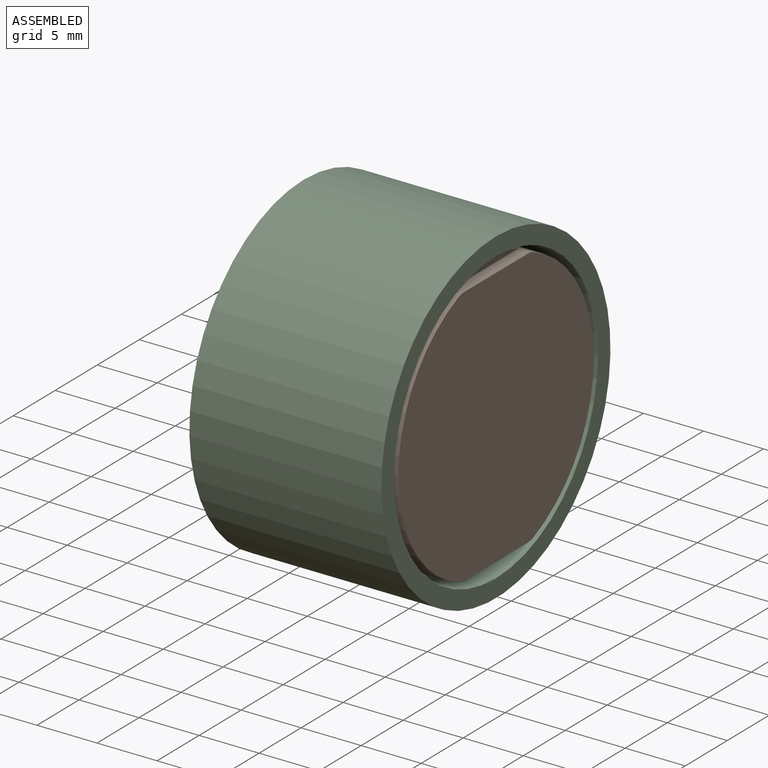
[diagram: assembled view]
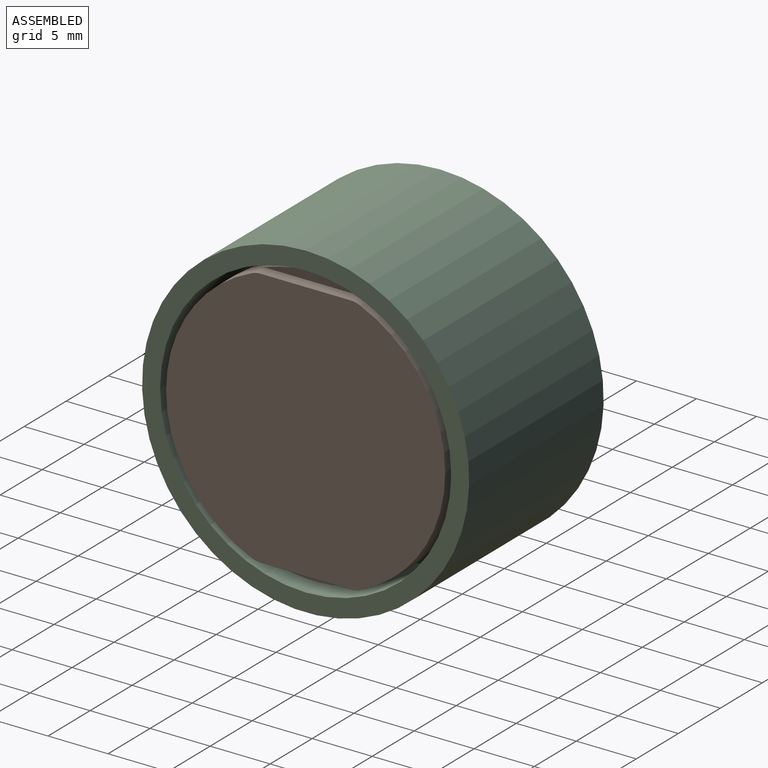
[diagram: assembled view, second angle]
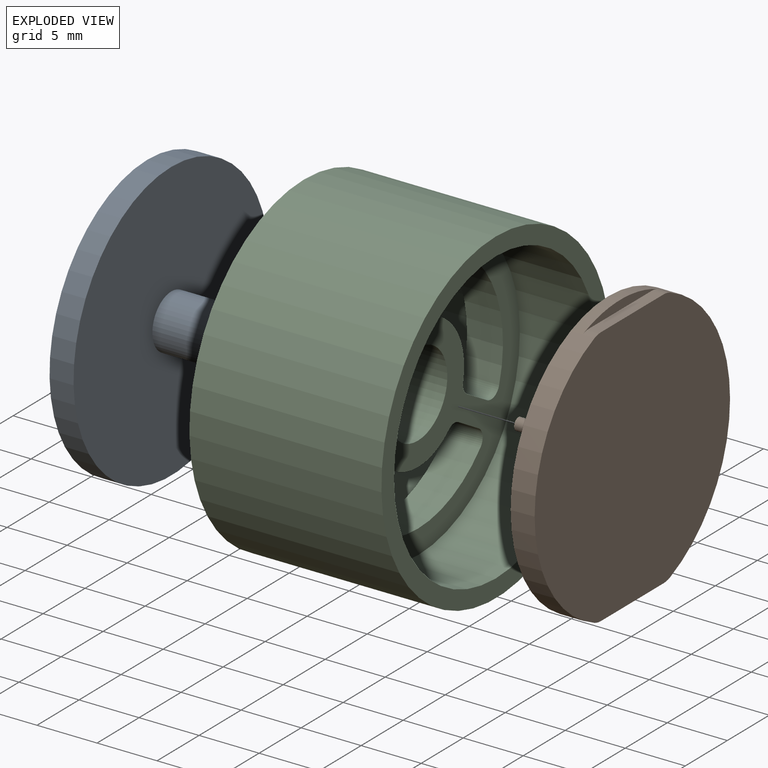
[diagram: exploded view]
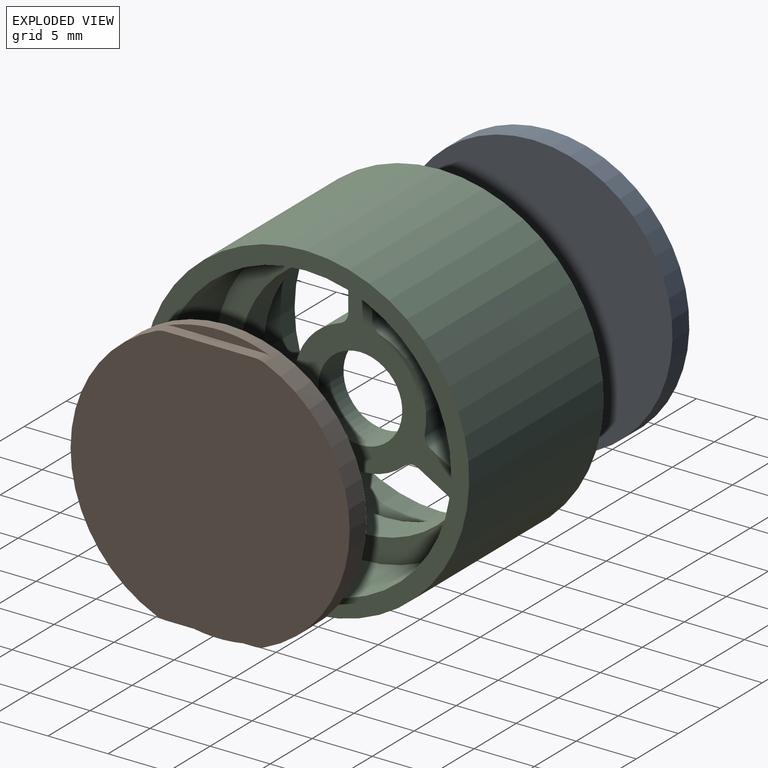
[diagram: exploded view, second angle]
ASSEMBLY  parts=3 mates=2
PART A: 14 faces, bbox 12.5x23.3x23.3 mm
  f0: cylinder r=2.25mm len=4.5mm, axis (-1,0,0), area 63.6mm2, adj f7,f12
  f1: cylinder r=1.5mm len=5mm, axis (1,0,0), area 47.1mm2, adj f11,f12
  f2: plane 23.25x23.25mm, normal (-1,0,0), area 415.6mm2, adj f3,f4,f5,f6,f8
  f3: plane 3x1mm, normal (0,1,0), area 3mm2, adj f2,f4,f6,f13
  f4: plane 3x1mm, normal (0,0,1), area 3mm2, adj f2,f3,f5,f13
  f5: plane 3x1mm, normal (0,-1,0), area 3mm2, adj f2,f4,f6,f13
  f6: plane 3x1mm, normal (0,0,-1), area 3mm2, adj f2,f3,f5,f13
  f7: plane 23.25x23.25mm, normal (1,0,0), area 408.7mm2, adj f0,f8
  f8: cylinder r=11.62mm len=23.25mm, axis (1,0,0), area 146.1mm2, adj f2,f7
  f9: plane 1x1mm, normal (1,0,0), area 0.8mm2, adj f10
  f10: cylinder r=0.5mm len=5mm, axis (-1,0,0), area 15.7mm2, adj f9,f11
  f11: plane 3x3mm, normal (1,0,0), area 6.3mm2, adj f1,f10
  f12: plane 4.5x4.5mm, normal (1,0,0), area 8.8mm2, adj f0,f1
  f13: plane 3x3mm, normal (-1,0,0), area 9mm2, adj f3,f4,f5,f6
PART B: 16 faces, bbox 9.5x23.3x23.3 mm
  f0: torus R=6.07mm, axis (1,0,0), area 103.8mm2, adj f10,f13
  f1: plane 9x0.91mm, normal (1,0,0), area 4.2mm2, adj f6,f7,f9,f14
  f2: cylinder r=2mm len=1mm, axis (1,0,0), area 0.8mm2, adj f8,f9,f12,f15
  f3: cylinder r=0.5mm len=5mm, axis (1,0,0), area 15.7mm2, adj f4,f11
  f4: plane 1x1mm, normal (-1,0,0), area 0.8mm2, adj f3
  f5: cylinder r=2mm len=1mm, axis (1,0,0), area 0.8mm2, adj f8,f9,f12,f15
  f6: cylinder r=2mm len=1mm, axis (1,0,0), area 0.8mm2, adj f1,f9,f12,f14
  f7: cylinder r=2mm len=1mm, axis (1,0,0), area 0.8mm2, adj f1,f9,f12,f14
  f8: plane 7.45x1mm, normal (0,0,1), area 7.4mm2, adj f2,f5,f12,f15
  f9: cylinder r=11.62mm len=23.25mm, axis (1,0,0), area 127.6mm2, adj f1,f2,f5,f6,f7,f12,f13,f15
  f10: cone r=4mm half-angle=45deg, axis (1,0,0), area 18.6mm2, adj f0,f11
  f11: plane 3x3mm, normal (-1,0,0), area 6.3mm2, adj f3,f10
  f12: plane 23.25x21.75mm, normal (1,0,0), area 416.2mm2, adj f2,f5,f6,f7,f8,f9,f14
  f13: plane 23.25x23.25mm, normal (-1,0,0), area 308.8mm2, adj f0,f9
  f14: plane 7.45x1mm, normal (0,0,-1), area 7.4mm2, adj f1,f6,f7,f12
  f15: plane 9x0.91mm, normal (1,0,0), area 4.2mm2, adj f2,f5,f8,f9
PART C: 32 faces, bbox 16x27.3x27.3 mm
  f0: cylinder r=1mm len=3mm, axis (-1,0,0), area 3.8mm2, adj f3,f4,f18,f21
  f1: cylinder r=1mm len=3mm, axis (-1,0,0), area 5.4mm2, adj f3,f4,f18,f19
  f2: cylinder r=10.12mm len=12.9mm, axis (-1,0,0), area 50.2mm2, adj f3,f4,f25,f26
  f3: plane 24.25x24.25mm, normal (1,0,0), area 226.8mm2, adj f0,f1,f2,f5,f10,f11,f12,f13
  f4: plane 24.25x24.25mm, normal (-1,0,0), area 226.8mm2, adj f0,f1,f2,f9,f10,f11,f12,f13
  f5: cylinder r=12.12mm len=24.25mm, axis (1,0,0), area 495.2mm2, adj f3,f6
  f6: plane 27.25x27.25mm, normal (1,0,0), area 121.3mm2, adj f5,f7
  f7: cylinder r=13.62mm len=27.25mm, axis (1,0,0), area 1369.7mm2, adj f6,f8
  f8: plane 27.25x27.25mm, normal (-1,0,0), area 121.3mm2, adj f7,f9
  f9: cylinder r=12.12mm len=24.25mm, axis (1,0,0), area 495.2mm2, adj f4,f8
  f10: cylinder r=3.5mm len=7mm, axis (1,0,0), area 66mm2, adj f3,f4
  f11: plane 3x2.35mm, normal (0,-0.5,0.87), area 8.2mm2, adj f3,f4,f23,f29
  f12: cylinder r=10.12mm len=12.9mm, axis (-1,0,0), area 50.2mm2, adj f3,f4,f23,f24
  f13: plane 3x2.72mm, normal (0,-1,0), area 8.2mm2, adj f3,f4,f24,f31
  f14: cylinder r=5.5mm len=6.38mm, axis (-1,0,0), area 24.2mm2, adj f3,f4,f29,f31
  f15: plane 3x2.72mm, normal (0,1,0), area 8.2mm2, adj f3,f4,f25,f28
  f16: cylinder r=5.5mm len=6.38mm, axis (-1,0,0), area 24.2mm2, adj f3,f4,f27,f28
  f17: plane 3x2.35mm, normal (0,0.5,0.87), area 8.2mm2, adj f3,f4,f26,f27
  f18: plane 3x2.35mm, normal (0,-0.5,-0.87), area 8.2mm2, adj f0,f1,f3,f4
  f19: cylinder r=10.12mm len=14.89mm, axis (-1,0,0), area 50.2mm2, adj f1,f3,f4,f22
  f20: plane 3x2.35mm, normal (0,0.5,-0.87), area 8.2mm2, adj f3,f4,f22,f30
  f21: cylinder r=5.5mm len=7.37mm, axis (-1,0,0), area 24.2mm2, adj f0,f3,f4,f30
  f22: cylinder r=1mm len=3mm, axis (-1,0,0), area 5.4mm2, adj f3,f4,f19,f20
  f23: cylinder r=1mm len=3mm, axis (-1,0,0), area 5.4mm2, adj f3,f4,f11,f12
  f24: cylinder r=1mm len=3mm, axis (-1,0,0), area 5.4mm2, adj f3,f4,f12,f13
  f25: cylinder r=1mm len=3mm, axis (-1,0,0), area 5.4mm2, adj f2,f3,f4,f15
  f26: cylinder r=1mm len=3mm, axis (-1,0,0), area 5.4mm2, adj f2,f3,f4,f17
  f27: cylinder r=1mm len=3mm, axis (-1,0,0), area 3.8mm2, adj f3,f4,f16,f17
  f28: cylinder r=1mm len=3mm, axis (-1,0,0), area 3.8mm2, adj f3,f4,f15,f16
  f29: cylinder r=1mm len=3mm, axis (-1,0,0), area 3.8mm2, adj f3,f4,f11,f14
  f30: cylinder r=1mm len=3mm, axis (-1,0,0), area 3.8mm2, adj f3,f4,f20,f21
  f31: cylinder r=1mm len=3mm, axis (-1,0,0), area 3.8mm2, adj f3,f4,f13,f14
PLACE A t=(16.63,-11.3,6.68)mm
PLACE B t=(15.13,-11.3,6.68)mm
PLACE C t=(16.63,-11.3,6.68)mm
MATE fastened A.f8 <-> C.f5  axis (-1,0,0) through (8.63,-11.3,6.68)mm
MATE fastened B.f0 <-> C.f5  axis (1,0,0) through (24.63,-11.3,6.68)mm
